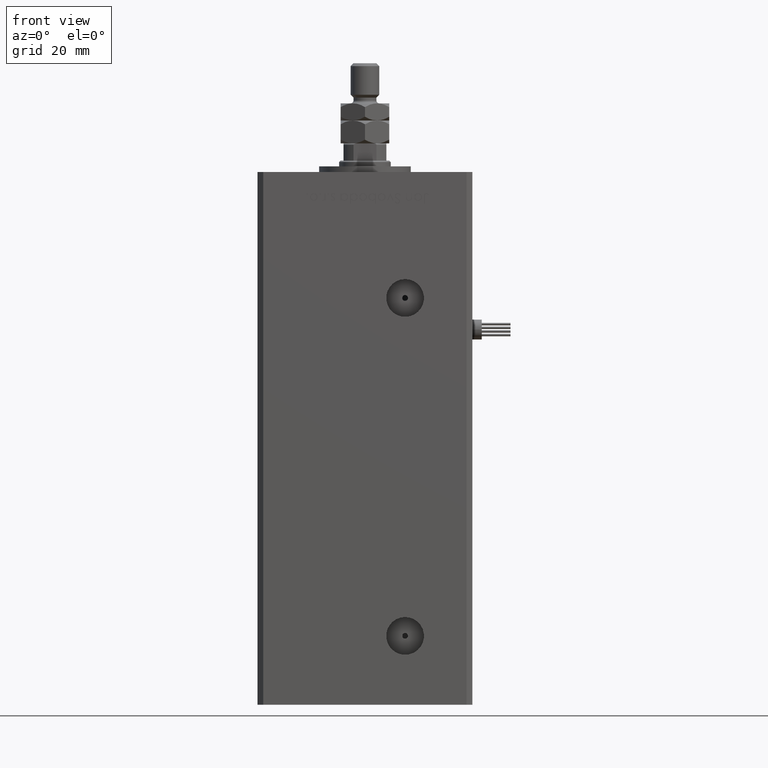
[diagram: clean part render]
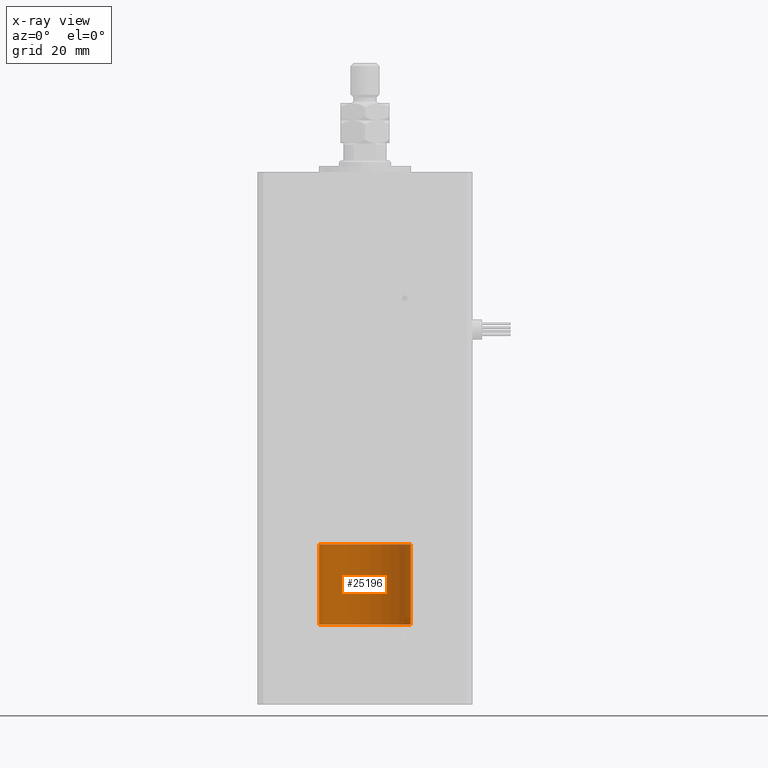
[diagram: x-ray — body ghosted, one internal face saturated and labeled with its STEP entity id]
A machine part, front view, then the same camera in x-ray: the body is ghosted and one INTERNAL B-rep face — a face not visible from any outside direction — is saturated and labeled: STEP entity #25196.
In plain terms, the highlighted cylindrical surface (partial cylindrical patch) has radius 16 mm, axis along (-0, -0, -1).
Its self-contained STEP definition (entity closure, byte-faithful):
#246 = LINE ( 'NONE', #13450, #56598 ) ;
#2632 = CARTESIAN_POINT ( 'NONE',  ( 0.000000000000000000, 0.000000000000000000, 28.00000000000000000 ) ) ;
#5264 = CARTESIAN_POINT ( 'NONE',  ( 0.000000000000000000, 0.000000000000000000, 28.00000000000000000 ) ) ;
#6223 = ORIENTED_EDGE ( 'NONE', *, *, #45493, .F. ) ;
#7176 = EDGE_LOOP ( 'NONE', ( #6223, #9876, #47824, #20855 ) ) ;
#7581 = DIRECTION ( 'NONE',  ( 1.000000000000000000, 0.000000000000000000, 0.000000000000000000 ) ) ;
#9876 = ORIENTED_EDGE ( 'NONE', *, *, #34976, .T. ) ;
#13450 = CARTESIAN_POINT ( 'NONE',  ( -15.99999999999999645, 0.000000000000000000, 28.00000000000000000 ) ) ;
#14995 = FACE_OUTER_BOUND ( 'NONE', #7176, .T. ) ;
#16239 = VERTEX_POINT ( 'NONE', #17835 ) ;
#17176 = AXIS2_PLACEMENT_3D ( 'NONE', #5264, #53450, #39138 ) ;
#17835 = CARTESIAN_POINT ( 'NONE',  ( -15.99999999999999645, 0.000000000000000000, 0.000000000000000000 ) ) ;
#20313 = CARTESIAN_POINT ( 'NONE',  ( 15.99999999999999645, 1.959434878635764737E-15, 28.00000000000000000 ) ) ;
#20481 = DIRECTION ( 'NONE',  ( 0.000000000000000000, 0.000000000000000000, 1.000000000000000000 ) ) ;
#20855 = ORIENTED_EDGE ( 'NONE', *, *, #51130, .F. ) ;
#21642 = CIRCLE ( 'NONE', #17176, 15.99999999999999645 ) ;
#24174 = DIRECTION ( 'NONE',  ( -1.000000000000000000, 0.000000000000000000, 0.000000000000000000 ) ) ;
#25052 = VECTOR ( 'NONE', #50726, 1000.000000000000000 ) ;
#25196 = ADVANCED_FACE ( 'NONE', ( #14995 ), #27618, .T. ) ;
#27618 = CYLINDRICAL_SURFACE ( 'NONE', #47216, 15.99999999999999645 ) ;
#32655 = AXIS2_PLACEMENT_3D ( 'NONE', #34263, #20481, #7581 ) ;
#34051 = CARTESIAN_POINT ( 'NONE',  ( 15.99999999999999645, 1.959434878635764737E-15, 28.00000000000000000 ) ) ;
#34263 = CARTESIAN_POINT ( 'NONE',  ( 0.000000000000000000, 0.000000000000000000, 0.000000000000000000 ) ) ;
#34976 = EDGE_CURVE ( 'NONE', #51384, #55932, #55308, .T. ) ;
#35577 = CARTESIAN_POINT ( 'NONE',  ( -15.99999999999999645, 0.000000000000000000, 28.00000000000000000 ) ) ;
#39078 = CIRCLE ( 'NONE', #32655, 15.99999999999999645 ) ;
#39138 = DIRECTION ( 'NONE',  ( 1.000000000000000000, 0.000000000000000000, 0.000000000000000000 ) ) ;
#43615 = EDGE_CURVE ( 'NONE', #55932, #16239, #39078, .T. ) ;
#45493 = EDGE_CURVE ( 'NONE', #51384, #49929, #21642, .T. ) ;
#47216 = AXIS2_PLACEMENT_3D ( 'NONE', #2632, #50257, #24174 ) ;
#47824 = ORIENTED_EDGE ( 'NONE', *, *, #43615, .T. ) ;
#48401 = CARTESIAN_POINT ( 'NONE',  ( 15.99999999999999645, 1.959434878635764737E-15, 0.000000000000000000 ) ) ;
#48715 = DIRECTION ( 'NONE',  ( -0.000000000000000000, -0.000000000000000000, -1.000000000000000000 ) ) ;
#49929 = VERTEX_POINT ( 'NONE', #35577 ) ;
#50257 = DIRECTION ( 'NONE',  ( -0.000000000000000000, -0.000000000000000000, -1.000000000000000000 ) ) ;
#50726 = DIRECTION ( 'NONE',  ( -0.000000000000000000, -0.000000000000000000, -1.000000000000000000 ) ) ;
#51130 = EDGE_CURVE ( 'NONE', #49929, #16239, #246, .T. ) ;
#51384 = VERTEX_POINT ( 'NONE', #34051 ) ;
#53450 = DIRECTION ( 'NONE',  ( 0.000000000000000000, 0.000000000000000000, 1.000000000000000000 ) ) ;
#55308 = LINE ( 'NONE', #20313, #25052 ) ;
#55932 = VERTEX_POINT ( 'NONE', #48401 ) ;
#56598 = VECTOR ( 'NONE', #48715, 1000.000000000000000 ) ;